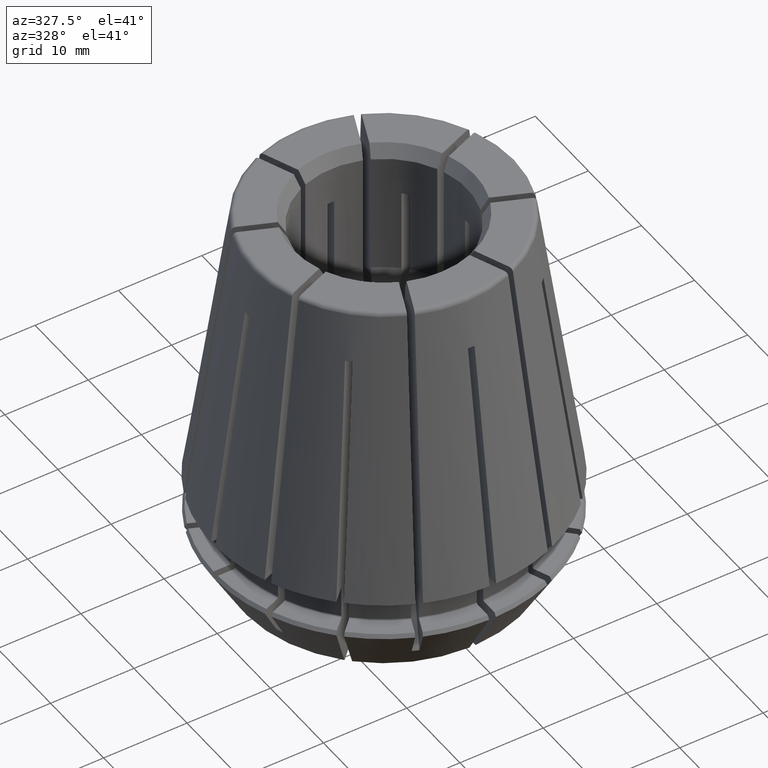
[diagram: clean part render]
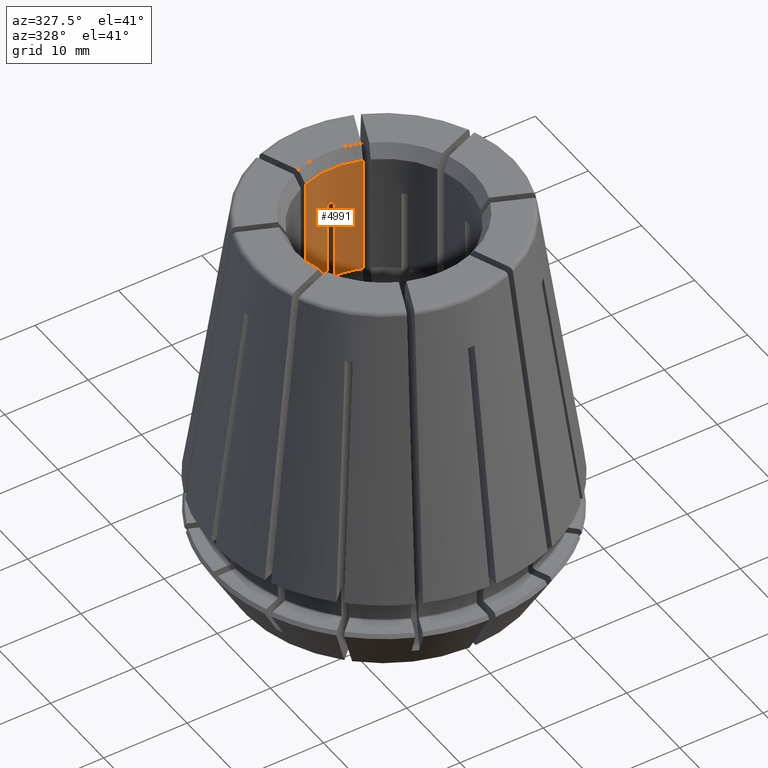
[diagram: same view with one face highlighted and labeled with its STEP entity id]
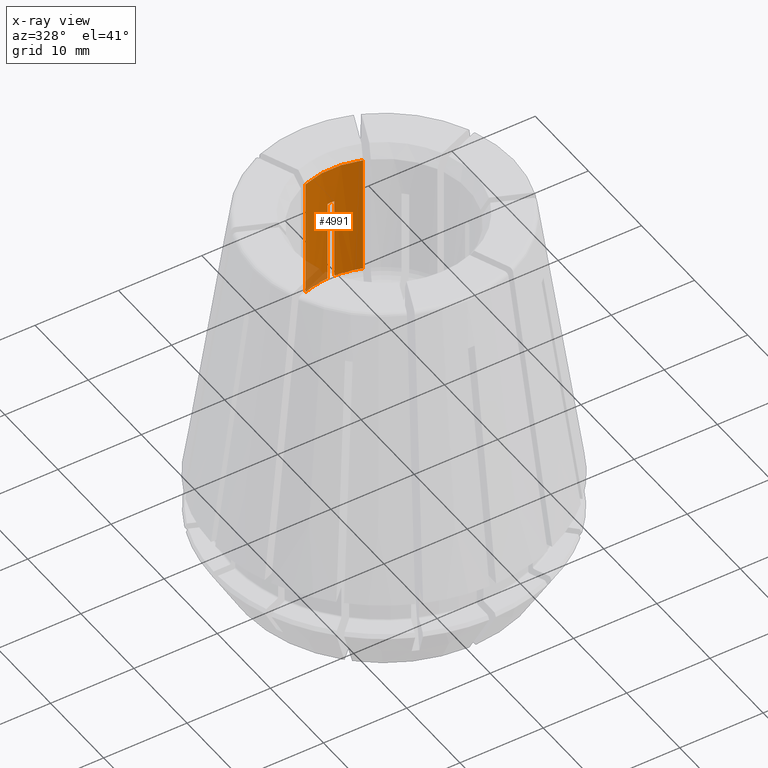
[diagram: x-ray of the same camera — body ghosted, the highlighted face saturated]
A machine part, auxiliary view. The second image highlights one B-rep face of the part: STEP entity #4991.
The next image is the same camera in x-ray: the body ghosted, the highlighted face saturated — about 7% of this face is hidden behind the body in this view.
In plain terms, the highlighted cylindrical surface (partial cylindrical patch) has radius 10 mm, axis along (0, 0, -1).
Its self-contained STEP definition (entity closure, byte-faithful):
#266=LINE('',#8326,#562);
#272=LINE('',#8355,#568);
#284=LINE('',#8433,#580);
#285=LINE('',#8436,#581);
#562=VECTOR('',#6315,1000.);
#568=VECTOR('',#6327,1000.);
#580=VECTOR('',#6375,1000.);
#581=VECTOR('',#6378,1000.);
#746=CYLINDRICAL_SURFACE('',#5418,10.);
#947=CIRCLE('',#5409,10.);
#954=CIRCLE('',#5419,10.);
#955=CIRCLE('',#5420,10.);
#1602=ORIENTED_EDGE('',*,*,#3132,.F.);
#1603=ORIENTED_EDGE('',*,*,#3142,.F.);
#1604=ORIENTED_EDGE('',*,*,#3143,.F.);
#1605=ORIENTED_EDGE('',*,*,#3112,.T.);
#1606=ORIENTED_EDGE('',*,*,#3128,.F.);
#1607=ORIENTED_EDGE('',*,*,#3129,.F.);
#1608=ORIENTED_EDGE('',*,*,#3144,.F.);
#1609=ORIENTED_EDGE('',*,*,#3145,.F.);
#1610=ORIENTED_EDGE('',*,*,#3103,.T.);
#3103=EDGE_CURVE('',#3859,#3858,#266,.T.);
#3112=EDGE_CURVE('',#3867,#3866,#272,.T.);
#3128=EDGE_CURVE('',#3877,#3866,#4182,.T.);
#3129=EDGE_CURVE('',#3878,#3877,#4183,.T.);
#3132=EDGE_CURVE('',#3879,#3858,#947,.T.);
#3142=EDGE_CURVE('',#3886,#3879,#284,.T.);
#3143=EDGE_CURVE('',#3867,#3886,#954,.T.);
#3144=EDGE_CURVE('',#3887,#3878,#285,.T.);
#3145=EDGE_CURVE('',#3859,#3887,#955,.T.);
#3858=VERTEX_POINT('',#8325);
#3859=VERTEX_POINT('',#8327);
#3866=VERTEX_POINT('',#8354);
#3867=VERTEX_POINT('',#8356);
#3877=VERTEX_POINT('',#8397);
#3878=VERTEX_POINT('',#8409);
#3879=VERTEX_POINT('',#8413);
#3886=VERTEX_POINT('',#8434);
#3887=VERTEX_POINT('',#8437);
#4182=B_SPLINE_CURVE_WITH_KNOTS('',3,(#8400,#8401,#8402,#8403),
 .UNSPECIFIED.,.F.,.F.,(4,4),(0.000399999999999999,0.0008),
 .UNSPECIFIED.);
#4183=B_SPLINE_CURVE_WITH_KNOTS('',3,(#8405,#8406,#8407,#8408),
 .UNSPECIFIED.,.F.,.F.,(4,4),(0.,0.000399999999999999),.UNSPECIFIED.);
#4375=EDGE_LOOP('',(#1602,#1603,#1604,#1605,#1606,#1607,#1608,#1609,#1610));
#4647=FACE_BOUND('',#4375,.T.);
#4991=ADVANCED_FACE('',(#4647),#746,.F.);
#5409=AXIS2_PLACEMENT_3D('',#8415,#6352,#6353);
#5418=AXIS2_PLACEMENT_3D('',#8432,#6373,#6374);
#5419=AXIS2_PLACEMENT_3D('',#8435,#6376,#6377);
#5420=AXIS2_PLACEMENT_3D('',#8438,#6379,#6380);
#6315=DIRECTION('',(0.,0.,1.));
#6327=DIRECTION('',(0.,0.,1.));
#6352=DIRECTION('',(0.,0.,-1.));
#6353=DIRECTION('',(-1.,0.,0.));
#6373=DIRECTION('',(0.,0.,-1.));
#6374=DIRECTION('',(1.,0.,0.));
#6375=DIRECTION('',(0.,0.,1.));
#6376=DIRECTION('',(0.,0.,1.));
#6377=DIRECTION('',(1.,0.,0.));
#6378=DIRECTION('',(0.,0.,1.));
#6379=DIRECTION('',(0.,0.,1.));
#6380=DIRECTION('',(1.,0.,0.));
#8325=CARTESIAN_POINT('',(3.45421981761983,9.38447470301681,44.7));
#8326=CARTESIAN_POINT('',(3.45421981761983,9.38447470301681,-57.));
#8327=CARTESIAN_POINT('',(3.45421981761981,9.38447470301682,30.2));
#8354=CARTESIAN_POINT('',(-0.4,9.99199679743744,40.191365170316));
#8355=CARTESIAN_POINT('',(-0.4,9.99199679743744,-57.));
#8356=CARTESIAN_POINT('',(-0.4,9.99199679743744,30.2));
#8397=CARTESIAN_POINT('',(0.,10.,40.2));
#8400=CARTESIAN_POINT('',(-2.85047569261252E-18,10.,40.2));
#8401=CARTESIAN_POINT('',(-0.133333333333334,10.,40.2));
#8402=CARTESIAN_POINT('',(-0.266666666666667,9.99733440256428,40.197125540078));
#8403=CARTESIAN_POINT('',(-0.4,9.99199679743744,40.1913651703159));
#8405=CARTESIAN_POINT('',(0.4,9.99199679743744,40.191365170316));
#8406=CARTESIAN_POINT('',(0.266666666666666,9.99733440256428,40.197125540078));
#8407=CARTESIAN_POINT('',(0.133333333333333,10.,40.2));
#8408=CARTESIAN_POINT('',(-2.85047569261252E-18,10.,40.2));
#8409=CARTESIAN_POINT('',(0.4,9.99199679743744,40.191365170316));
#8413=CARTESIAN_POINT('',(-3.45421981761983,9.38447470301681,44.7));
#8415=CARTESIAN_POINT('',(0.,0.,44.7));
#8432=CARTESIAN_POINT('',(0.,0.,-57.));
#8433=CARTESIAN_POINT('',(-3.45421981761983,9.38447470301681,-57.));
#8434=CARTESIAN_POINT('',(-3.45421981761981,9.38447470301682,30.2));
#8435=CARTESIAN_POINT('',(0.,0.,30.2));
#8436=CARTESIAN_POINT('',(0.4,9.99199679743744,-57.));
#8437=CARTESIAN_POINT('',(0.4,9.99199679743744,30.2));
#8438=CARTESIAN_POINT('',(0.,0.,30.2));